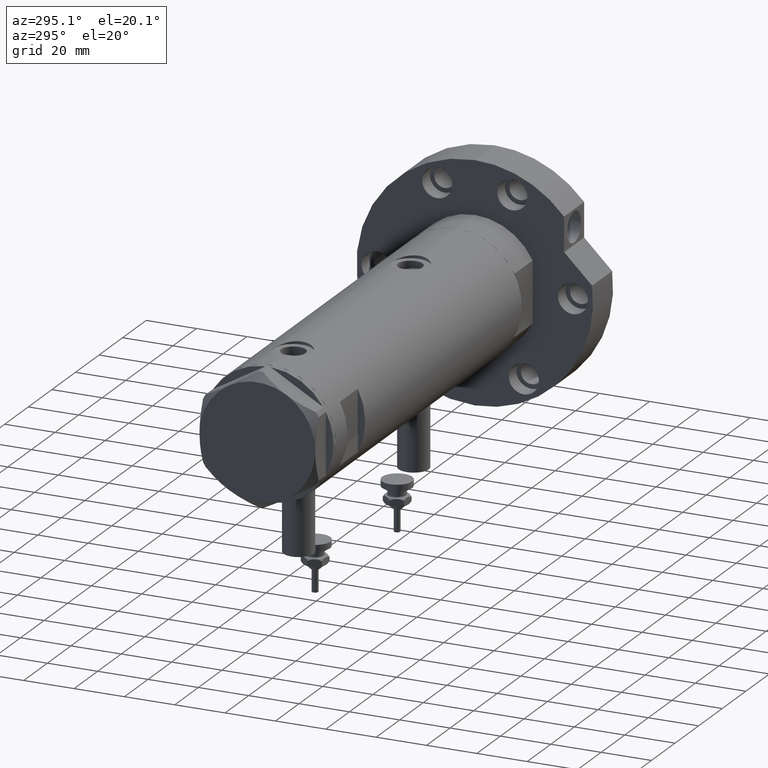
[diagram: clean part render]
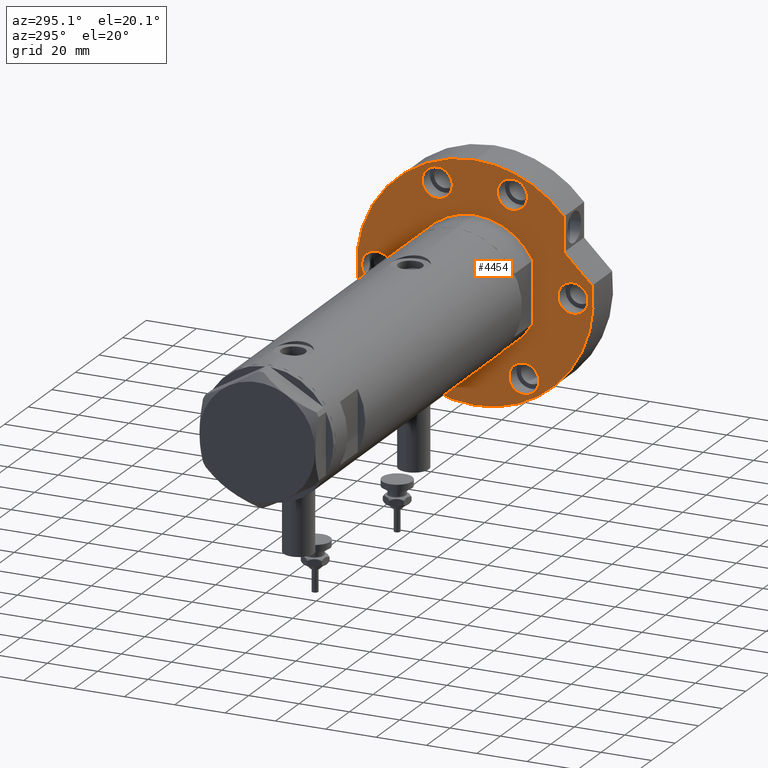
[diagram: same view with one face highlighted and labeled with its STEP entity id]
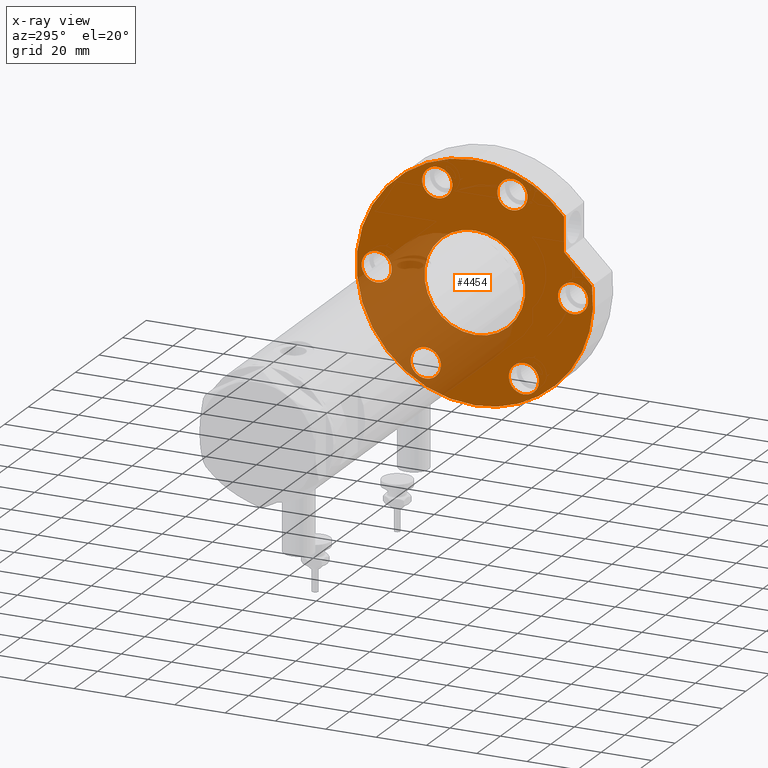
[diagram: x-ray of the same camera — body ghosted, the highlighted face saturated]
A machine part, auxiliary view. The second image highlights one B-rep face of the part: STEP entity #4454.
The next image is the same camera in x-ray: the body ghosted, the highlighted face saturated — about 30% of this face is hidden behind the body in this view.
In plain terms, the highlighted planar face has unit normal (1, 0, -0).
Its self-contained STEP definition (entity closure, byte-faithful):
#99 = DIRECTION ( 'NONE',  ( -1.000000000000000000, 0.000000000000000000, 0.000000000000000000 ) ) ;
#107 = FACE_BOUND ( 'NONE', #5527, .T. ) ;
#133 = AXIS2_PLACEMENT_3D ( 'NONE', #4415, #4481, #99 ) ;
#136 = CARTESIAN_POINT ( 'NONE',  ( -20.00000000000000000, 2.449293598294706513E-15, 0.000000000000000000 ) ) ;
#162 = AXIS2_PLACEMENT_3D ( 'NONE', #6874, #3271, #1521 ) ;
#178 = CARTESIAN_POINT ( 'NONE',  ( -39.77499074759315079, 19.49999999999992539, 0.000000000000000000 ) ) ;
#231 = DIRECTION ( 'NONE',  ( 1.000000000000000000, -1.019675812477181606E-15, 0.000000000000000000 ) ) ;
#394 = CIRCLE ( 'NONE', #7454, 20.00000000000000000 ) ;
#533 = CARTESIAN_POINT ( 'NONE',  ( 20.00000000000000000, 0.000000000000000000, 0.000000000000000000 ) ) ;
#622 = ORIENTED_EDGE ( 'NONE', *, *, #6469, .F. ) ;
#645 = DIRECTION ( 'NONE',  ( 0.000000000000000000, 0.000000000000000000, -1.000000000000000000 ) ) ;
#746 = DIRECTION ( 'NONE',  ( 0.000000000000000000, 0.000000000000000000, -1.000000000000000000 ) ) ;
#766 = AXIS2_PLACEMENT_3D ( 'NONE', #928, #5954, #6517 ) ;
#803 = EDGE_CURVE ( 'NONE', #3080, #5175, #3894, .T. ) ;
#857 = EDGE_LOOP ( 'NONE', ( #6071, #5817 ) ) ;
#870 = DIRECTION ( 'NONE',  ( 0.000000000000000000, 0.000000000000000000, -1.000000000000000000 ) ) ;
#897 = VECTOR ( 'NONE', #1843, 999.9999999999998863 ) ;
#928 = CARTESIAN_POINT ( 'NONE',  ( 0.000000000000000000, -39.00000000000000000, 0.000000000000000000 ) ) ;
#945 = AXIS2_PLACEMENT_3D ( 'NONE', #4559, #6407, #7499 ) ;
#954 = CARTESIAN_POINT ( 'NONE',  ( 30.03130176794011774, -14.92465386223865842, 0.000000000000000000 ) ) ;
#959 = EDGE_CURVE ( 'NONE', #7258, #5029, #2873, .T. ) ;
#1002 = EDGE_LOOP ( 'NONE', ( #6187, #1670 ) ) ;
#1075 = DIRECTION ( 'NONE',  ( -1.000000000000000000, 0.000000000000000000, 0.000000000000000000 ) ) ;
#1157 = VERTEX_POINT ( 'NONE', #5865 ) ;
#1198 = ORIENTED_EDGE ( 'NONE', *, *, #1286, .F. ) ;
#1249 = CARTESIAN_POINT ( 'NONE',  ( -33.77499074759302289, -19.50000000000015277, 0.000000000000000000 ) ) ;
#1274 = ORIENTED_EDGE ( 'NONE', *, *, #803, .F. ) ;
#1286 = EDGE_CURVE ( 'NONE', #3926, #3938, #1326, .T. ) ;
#1297 = EDGE_CURVE ( 'NONE', #3938, #3926, #5561, .T. ) ;
#1326 = CIRCLE ( 'NONE', #4156, 6.000000000000005329 ) ;
#1330 = VERTEX_POINT ( 'NONE', #533 ) ;
#1364 = PLANE ( 'NONE',  #6938 ) ;
#1488 = CARTESIAN_POINT ( 'NONE',  ( 17.22217135699461110, 35.47361286101150313, 0.000000000000000000 ) ) ;
#1521 = DIRECTION ( 'NONE',  ( -1.000000000000000000, 0.000000000000000000, 0.000000000000000000 ) ) ;
#1545 = EDGE_CURVE ( 'NONE', #2861, #4376, #6852, .T. ) ;
#1557 = CARTESIAN_POINT ( 'NONE',  ( -27.77499074759315434, 19.49999999999992539, 0.000000000000000000 ) ) ;
#1571 = DIRECTION ( 'NONE',  ( 0.000000000000000000, 0.000000000000000000, 1.000000000000000000 ) ) ;
#1655 = DIRECTION ( 'NONE',  ( 1.000000000000000000, 0.000000000000000000, 0.000000000000000000 ) ) ;
#1670 = ORIENTED_EDGE ( 'NONE', *, *, #959, .F. ) ;
#1684 = DIRECTION ( 'NONE',  ( 0.000000000000000000, 0.000000000000000000, -1.000000000000000000 ) ) ;
#1780 = DIRECTION ( 'NONE',  ( 0.000000000000000000, 0.000000000000000000, 1.000000000000000000 ) ) ;
#1799 = CARTESIAN_POINT ( 'NONE',  ( 42.03130176794011419, -14.92465386223865842, 0.000000000000000000 ) ) ;
#1829 = DIRECTION ( 'NONE',  ( 0.000000000000000000, 0.000000000000000000, -1.000000000000000000 ) ) ;
#1843 = DIRECTION ( 'NONE',  ( 0.7071067811865511255, -0.7071067811865440200, -0.000000000000000000 ) ) ;
#1899 = EDGE_CURVE ( 'NONE', #4376, #2861, #5181, .T. ) ;
#1951 = CIRCLE ( 'NONE', #7330, 46.99999999999999289 ) ;
#1977 = FACE_BOUND ( 'NONE', #5490, .T. ) ;
#2087 = EDGE_LOOP ( 'NONE', ( #6292, #4088 ) ) ;
#2089 = FACE_BOUND ( 'NONE', #4569, .T. ) ;
#2210 = DIRECTION ( 'NONE',  ( 1.000000000000000000, 0.000000000000000000, 0.000000000000000000 ) ) ;
#2259 = DIRECTION ( 'NONE',  ( -1.000000000000000000, 0.000000000000000000, 0.000000000000000000 ) ) ;
#2335 = CIRCLE ( 'NONE', #4008, 5.999999999999998224 ) ;
#2459 = ORIENTED_EDGE ( 'NONE', *, *, #7002, .F. ) ;
#2460 = DIRECTION ( 'NONE',  ( 0.000000000000000000, 0.000000000000000000, -1.000000000000000000 ) ) ;
#2496 = DIRECTION ( 'NONE',  ( 0.000000000000000000, 0.000000000000000000, -1.000000000000000000 ) ) ;
#2549 = DIRECTION ( 'NONE',  ( 1.000000000000000000, 0.000000000000000000, 0.000000000000000000 ) ) ;
#2577 = FACE_BOUND ( 'NONE', #4777, .T. ) ;
#2614 = DIRECTION ( 'NONE',  ( -1.000000000000000000, 0.000000000000000000, 0.000000000000000000 ) ) ;
#2725 = EDGE_CURVE ( 'NONE', #6386, #4713, #3086, .T. ) ;
#2861 = VERTEX_POINT ( 'NONE', #7761 ) ;
#2873 = CIRCLE ( 'NONE', #162, 5.999999999999998224 ) ;
#2931 = CARTESIAN_POINT ( 'NONE',  ( -6.000000000000000000, -39.00000000000000000, 0.000000000000000000 ) ) ;
#3080 = VERTEX_POINT ( 'NONE', #5860 ) ;
#3086 = CIRCLE ( 'NONE', #7555, 46.99999999999999289 ) ;
#3136 = CIRCLE ( 'NONE', #7602, 20.00000000000000000 ) ;
#3162 = VERTEX_POINT ( 'NONE', #3977 ) ;
#3224 = CARTESIAN_POINT ( 'NONE',  ( 0.000000000000000000, 0.000000000000000000, 0.000000000000000000 ) ) ;
#3236 = EDGE_CURVE ( 'NONE', #5029, #7258, #7687, .T. ) ;
#3271 = DIRECTION ( 'NONE',  ( 0.000000000000000000, 0.000000000000000000, -1.000000000000000000 ) ) ;
#3313 = LINE ( 'NONE', #1488, #3991 ) ;
#3352 = CIRCLE ( 'NONE', #7442, 5.999999999999998224 ) ;
#3491 = CARTESIAN_POINT ( 'NONE',  ( 17.22217135699461110, 35.47361286101150313, 0.000000000000000000 ) ) ;
#3637 = CARTESIAN_POINT ( 'NONE',  ( 42.03130176794011419, 14.92465386223865842, 0.000000000000000000 ) ) ;
#3656 = LINE ( 'NONE', #3491, #897 ) ;
#3894 = CIRCLE ( 'NONE', #4912, 6.000000000000000000 ) ;
#3904 = EDGE_CURVE ( 'NONE', #3162, #4713, #3313, .T. ) ;
#3922 = CARTESIAN_POINT ( 'NONE',  ( 0.000000000000000000, 0.000000000000000000, 0.000000000000000000 ) ) ;
#3926 = VERTEX_POINT ( 'NONE', #6236 ) ;
#3938 = VERTEX_POINT ( 'NONE', #5710 ) ;
#3977 = CARTESIAN_POINT ( 'NONE',  ( 17.22217135699460755, 35.47361286101150313, 0.000000000000000000 ) ) ;
#3991 = VECTOR ( 'NONE', #231, 1000.000000000000000 ) ;
#4008 = AXIS2_PLACEMENT_3D ( 'NONE', #4896, #2496, #7297 ) ;
#4026 = ORIENTED_EDGE ( 'NONE', *, *, #6069, .T. ) ;
#4029 = DIRECTION ( 'NONE',  ( 0.000000000000000000, 0.000000000000000000, 1.000000000000000000 ) ) ;
#4076 = DIRECTION ( 'NONE',  ( 0.000000000000000000, 0.000000000000000000, 1.000000000000000000 ) ) ;
#4088 = ORIENTED_EDGE ( 'NONE', *, *, #4586, .T. ) ;
#4119 = EDGE_CURVE ( 'NONE', #5175, #3080, #4251, .T. ) ;
#4156 = AXIS2_PLACEMENT_3D ( 'NONE', #4315, #1829, #6037 ) ;
#4186 = CARTESIAN_POINT ( 'NONE',  ( 30.83217135699462830, 35.47361286101148892, 0.000000000000000000 ) ) ;
#4190 = DIRECTION ( 'NONE',  ( -1.000000000000000000, 0.000000000000000000, 0.000000000000000000 ) ) ;
#4238 = AXIS2_PLACEMENT_3D ( 'NONE', #6743, #1684, #1075 ) ;
#4251 = CIRCLE ( 'NONE', #766, 6.000000000000000000 ) ;
#4276 = DIRECTION ( 'NONE',  ( -1.000000000000000000, 0.000000000000000000, 0.000000000000000000 ) ) ;
#4315 = CARTESIAN_POINT ( 'NONE',  ( -33.77499074759302289, -19.50000000000015277, 0.000000000000000000 ) ) ;
#4345 = CARTESIAN_POINT ( 'NONE',  ( 0.000000000000000000, -39.00000000000000000, 0.000000000000000000 ) ) ;
#4349 = EDGE_CURVE ( 'NONE', #4476, #1157, #6556, .T. ) ;
#4376 = VERTEX_POINT ( 'NONE', #7428 ) ;
#4409 = ORIENTED_EDGE ( 'NONE', *, *, #5239, .F. ) ;
#4415 = CARTESIAN_POINT ( 'NONE',  ( 36.03130176794011419, 14.92465386223865842, 0.000000000000000000 ) ) ;
#4426 = FACE_BOUND ( 'NONE', #2087, .T. ) ;
#4454 = ADVANCED_FACE ( 'NONE', ( #5619, #107, #5136, #2089, #2577, #1977, #4426, #6873 ), #1364, .F. ) ;
#4476 = VERTEX_POINT ( 'NONE', #6542 ) ;
#4481 = DIRECTION ( 'NONE',  ( 0.000000000000000000, 0.000000000000000000, -1.000000000000000000 ) ) ;
#4559 = CARTESIAN_POINT ( 'NONE',  ( 0.000000000000000000, 39.00000000000000000, 0.000000000000000000 ) ) ;
#4569 = EDGE_LOOP ( 'NONE', ( #7367, #1274 ) ) ;
#4586 = EDGE_CURVE ( 'NONE', #5904, #1330, #394, .T. ) ;
#4616 = DIRECTION ( 'NONE',  ( 1.000000000000000000, 0.000000000000000000, -0.000000000000000000 ) ) ;
#4713 = VERTEX_POINT ( 'NONE', #4186 ) ;
#4777 = EDGE_LOOP ( 'NONE', ( #1198, #5244 ) ) ;
#4864 = DIRECTION ( 'NONE',  ( 1.000000000000000000, 0.000000000000000000, 0.000000000000000000 ) ) ;
#4893 = EDGE_CURVE ( 'NONE', #6637, #5820, #6282, .T. ) ;
#4896 = CARTESIAN_POINT ( 'NONE',  ( 36.03130176794011419, 14.92465386223865842, 0.000000000000000000 ) ) ;
#4912 = AXIS2_PLACEMENT_3D ( 'NONE', #4345, #5551, #6080 ) ;
#5029 = VERTEX_POINT ( 'NONE', #954 ) ;
#5136 = FACE_BOUND ( 'NONE', #1002, .T. ) ;
#5143 = ORIENTED_EDGE ( 'NONE', *, *, #2725, .F. ) ;
#5175 = VERTEX_POINT ( 'NONE', #2931 ) ;
#5181 = CIRCLE ( 'NONE', #945, 6.000000000000000888 ) ;
#5193 = CARTESIAN_POINT ( 'NONE',  ( 46.99999999999999289, 5.755839955992559063E-15, 0.000000000000000000 ) ) ;
#5196 = DIRECTION ( 'NONE',  ( 1.000000000000000000, 0.000000000000000000, 0.000000000000000000 ) ) ;
#5239 = EDGE_CURVE ( 'NONE', #7205, #5879, #6676, .T. ) ;
#5244 = ORIENTED_EDGE ( 'NONE', *, *, #1297, .F. ) ;
#5258 = CARTESIAN_POINT ( 'NONE',  ( 0.000000000000000000, 0.000000000000000000, 0.000000000000000000 ) ) ;
#5275 = AXIS2_PLACEMENT_3D ( 'NONE', #7921, #1780, #4864 ) ;
#5298 = EDGE_LOOP ( 'NONE', ( #4026, #6774, #5143, #622, #7022 ) ) ;
#5390 = CARTESIAN_POINT ( 'NONE',  ( 0.000000000000000000, 0.000000000000000000, 0.000000000000000000 ) ) ;
#5490 = EDGE_LOOP ( 'NONE', ( #7777, #4409 ) ) ;
#5527 = EDGE_LOOP ( 'NONE', ( #2459, #7916 ) ) ;
#5537 = CARTESIAN_POINT ( 'NONE',  ( 30.03130176794011774, 14.92465386223865842, 0.000000000000000000 ) ) ;
#5542 = EDGE_CURVE ( 'NONE', #5879, #7205, #3352, .T. ) ;
#5551 = DIRECTION ( 'NONE',  ( 0.000000000000000000, 0.000000000000000000, -1.000000000000000000 ) ) ;
#5561 = CIRCLE ( 'NONE', #6326, 6.000000000000005329 ) ;
#5619 = FACE_BOUND ( 'NONE', #857, .T. ) ;
#5710 = CARTESIAN_POINT ( 'NONE',  ( -27.77499074759301578, -19.50000000000015277, 0.000000000000000000 ) ) ;
#5817 = ORIENTED_EDGE ( 'NONE', *, *, #1545, .F. ) ;
#5820 = VERTEX_POINT ( 'NONE', #5537 ) ;
#5860 = CARTESIAN_POINT ( 'NONE',  ( 6.000000000000000000, -39.00000000000000000, 0.000000000000000000 ) ) ;
#5865 = CARTESIAN_POINT ( 'NONE',  ( -46.99999999999999289, 0.000000000000000000, 0.000000000000000000 ) ) ;
#5879 = VERTEX_POINT ( 'NONE', #178 ) ;
#5904 = VERTEX_POINT ( 'NONE', #136 ) ;
#5954 = DIRECTION ( 'NONE',  ( 0.000000000000000000, 0.000000000000000000, -1.000000000000000000 ) ) ;
#6037 = DIRECTION ( 'NONE',  ( -1.000000000000000000, 0.000000000000000000, 0.000000000000000000 ) ) ;
#6069 = EDGE_CURVE ( 'NONE', #4476, #3162, #3656, .T. ) ;
#6071 = ORIENTED_EDGE ( 'NONE', *, *, #1899, .F. ) ;
#6080 = DIRECTION ( 'NONE',  ( -1.000000000000000000, 0.000000000000000000, 0.000000000000000000 ) ) ;
#6187 = ORIENTED_EDGE ( 'NONE', *, *, #3236, .F. ) ;
#6236 = CARTESIAN_POINT ( 'NONE',  ( -39.77499074759302289, -19.50000000000015277, 0.000000000000000000 ) ) ;
#6269 = CARTESIAN_POINT ( 'NONE',  ( 0.000000000000000000, 0.000000000000000000, 0.000000000000000000 ) ) ;
#6282 = CIRCLE ( 'NONE', #133, 5.999999999999998224 ) ;
#6292 = ORIENTED_EDGE ( 'NONE', *, *, #7844, .T. ) ;
#6326 = AXIS2_PLACEMENT_3D ( 'NONE', #1249, #645, #4276 ) ;
#6386 = VERTEX_POINT ( 'NONE', #5193 ) ;
#6407 = DIRECTION ( 'NONE',  ( 0.000000000000000000, 0.000000000000000000, -1.000000000000000000 ) ) ;
#6469 = EDGE_CURVE ( 'NONE', #1157, #6386, #1951, .T. ) ;
#6480 = CARTESIAN_POINT ( 'NONE',  ( 0.000000000000000000, 39.00000000000000000, 0.000000000000000000 ) ) ;
#6517 = DIRECTION ( 'NONE',  ( -1.000000000000000000, 0.000000000000000000, 0.000000000000000000 ) ) ;
#6542 = CARTESIAN_POINT ( 'NONE',  ( 6.092310621118299352, 46.60347359688769586, 0.000000000000000000 ) ) ;
#6556 = CIRCLE ( 'NONE', #5275, 46.99999999999999289 ) ;
#6637 = VERTEX_POINT ( 'NONE', #3637 ) ;
#6676 = CIRCLE ( 'NONE', #7701, 5.999999999999998224 ) ;
#6743 = CARTESIAN_POINT ( 'NONE',  ( 36.03130176794011419, -14.92465386223865842, 0.000000000000000000 ) ) ;
#6774 = ORIENTED_EDGE ( 'NONE', *, *, #3904, .T. ) ;
#6784 = CARTESIAN_POINT ( 'NONE',  ( -33.77499074759315079, 19.49999999999992539, 0.000000000000000000 ) ) ;
#6852 = CIRCLE ( 'NONE', #7754, 6.000000000000000888 ) ;
#6873 = FACE_OUTER_BOUND ( 'NONE', #5298, .T. ) ;
#6874 = CARTESIAN_POINT ( 'NONE',  ( 36.03130176794011419, -14.92465386223865842, 0.000000000000000000 ) ) ;
#6877 = DIRECTION ( 'NONE',  ( 0.000000000000000000, 0.000000000000000000, 1.000000000000000000 ) ) ;
#6938 = AXIS2_PLACEMENT_3D ( 'NONE', #3224, #4029, #4616 ) ;
#7002 = EDGE_CURVE ( 'NONE', #5820, #6637, #2335, .T. ) ;
#7022 = ORIENTED_EDGE ( 'NONE', *, *, #4349, .F. ) ;
#7078 = DIRECTION ( 'NONE',  ( 0.000000000000000000, 0.000000000000000000, 1.000000000000000000 ) ) ;
#7205 = VERTEX_POINT ( 'NONE', #1557 ) ;
#7258 = VERTEX_POINT ( 'NONE', #1799 ) ;
#7297 = DIRECTION ( 'NONE',  ( -1.000000000000000000, 0.000000000000000000, 0.000000000000000000 ) ) ;
#7330 = AXIS2_PLACEMENT_3D ( 'NONE', #5390, #4076, #1655 ) ;
#7353 = CARTESIAN_POINT ( 'NONE',  ( -33.77499074759315079, 19.49999999999992539, 0.000000000000000000 ) ) ;
#7367 = ORIENTED_EDGE ( 'NONE', *, *, #4119, .F. ) ;
#7428 = CARTESIAN_POINT ( 'NONE',  ( -6.000000000000000888, 39.00000000000000000, 0.000000000000000000 ) ) ;
#7442 = AXIS2_PLACEMENT_3D ( 'NONE', #6784, #746, #2614 ) ;
#7454 = AXIS2_PLACEMENT_3D ( 'NONE', #5258, #1571, #2210 ) ;
#7499 = DIRECTION ( 'NONE',  ( -1.000000000000000000, 0.000000000000000000, 0.000000000000000000 ) ) ;
#7555 = AXIS2_PLACEMENT_3D ( 'NONE', #6269, #6877, #2549 ) ;
#7602 = AXIS2_PLACEMENT_3D ( 'NONE', #3922, #7078, #5196 ) ;
#7687 = CIRCLE ( 'NONE', #4238, 5.999999999999998224 ) ;
#7701 = AXIS2_PLACEMENT_3D ( 'NONE', #7353, #2460, #4190 ) ;
#7754 = AXIS2_PLACEMENT_3D ( 'NONE', #6480, #870, #2259 ) ;
#7761 = CARTESIAN_POINT ( 'NONE',  ( 6.000000000000000888, 39.00000000000000000, 0.000000000000000000 ) ) ;
#7777 = ORIENTED_EDGE ( 'NONE', *, *, #5542, .F. ) ;
#7844 = EDGE_CURVE ( 'NONE', #1330, #5904, #3136, .T. ) ;
#7916 = ORIENTED_EDGE ( 'NONE', *, *, #4893, .F. ) ;
#7921 = CARTESIAN_POINT ( 'NONE',  ( 0.000000000000000000, 0.000000000000000000, 0.000000000000000000 ) ) ;